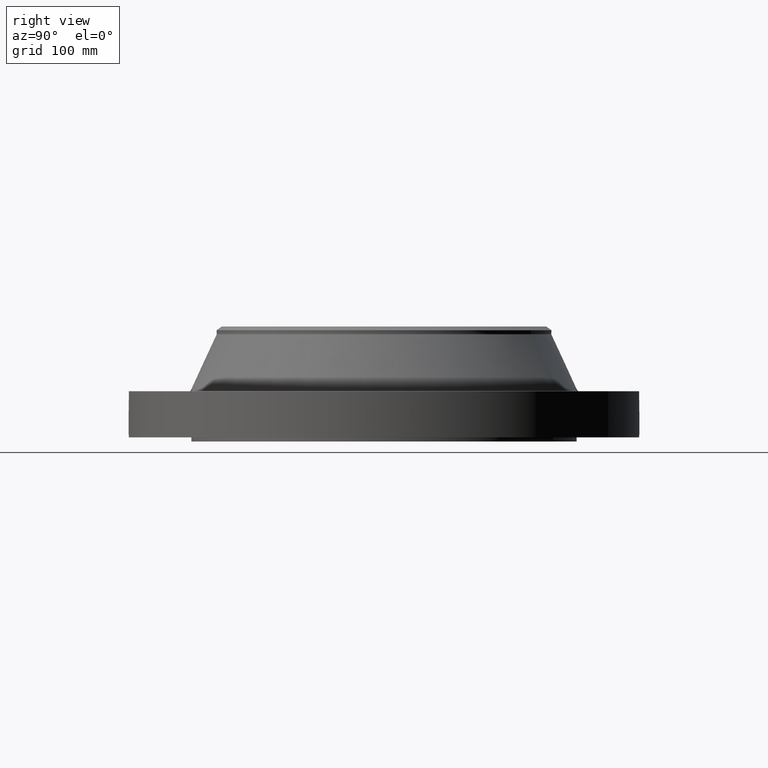
[diagram: clean part render]
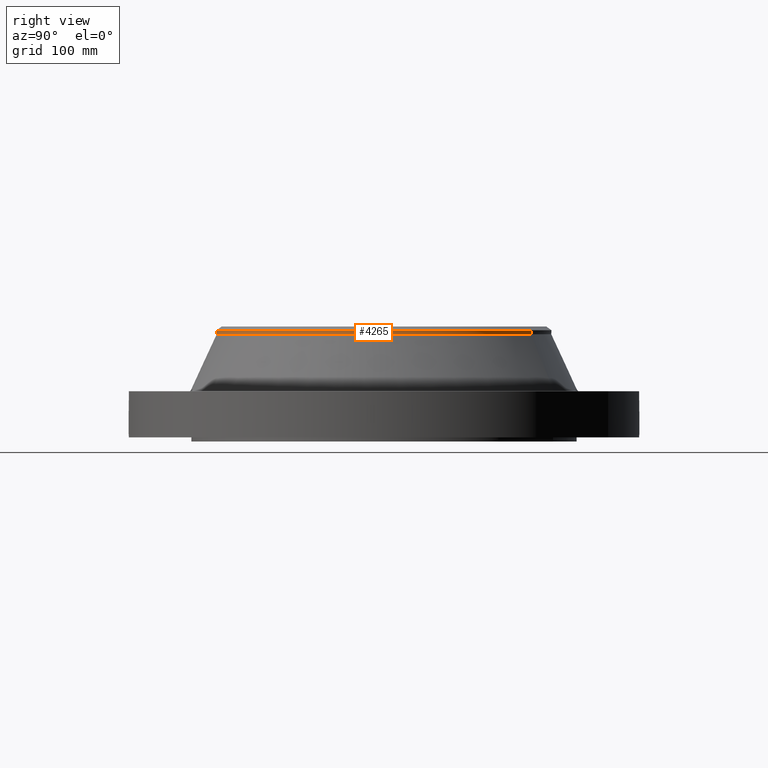
[diagram: same view with one face highlighted and labeled with its STEP entity id]
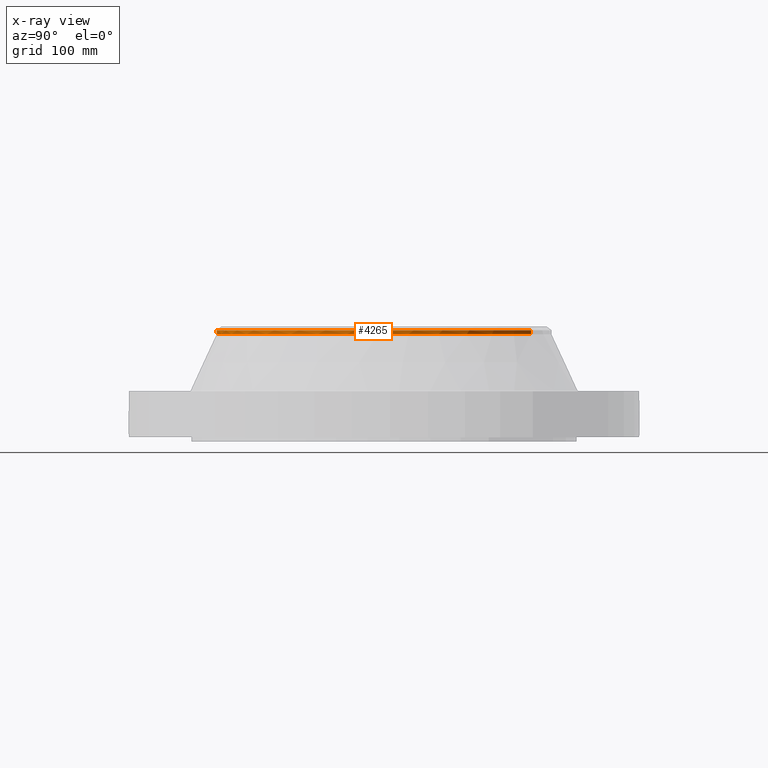
[diagram: x-ray of the same camera — body ghosted, the highlighted face saturated]
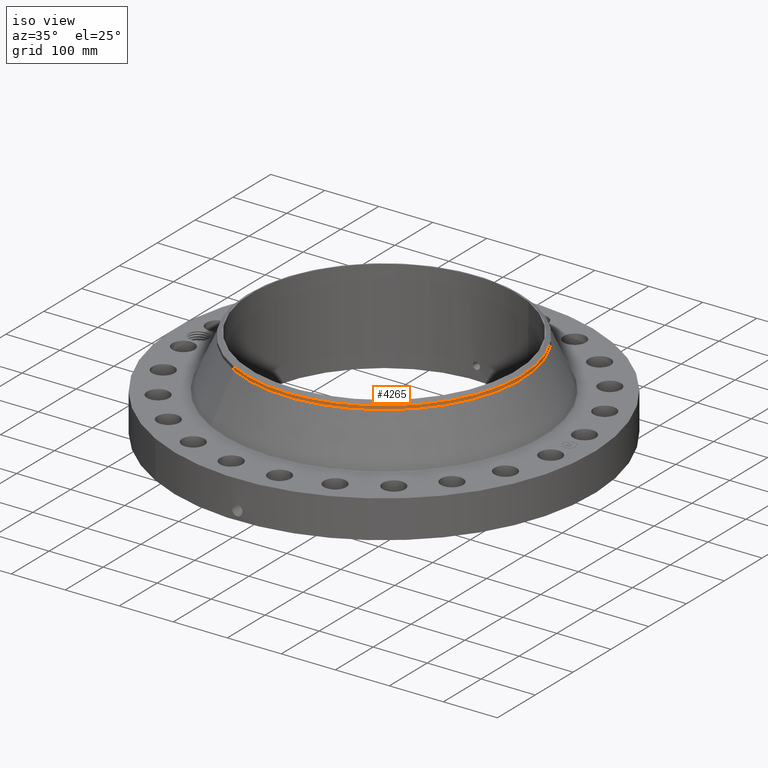
[diagram: same view with one face highlighted and labeled with its STEP entity id]
A machine part, right view. The second image highlights one B-rep face of the part: STEP entity #4265.
The next image is the same camera in x-ray: the body ghosted, the highlighted face saturated — about 0% of this face is hidden behind the body in this view.
A second angle (iso view) of the same face is appended — the face is thin or edge-on in the first view.
In plain terms, the highlighted cylindrical surface (partial cylindrical patch) has radius 254 mm, axis along (0, 0, -1).
Its self-contained STEP definition (entity closure, byte-faithful):
#3430=AXIS2_PLACEMENT_3D('Circle Axis2P3D',#3428,#3429,$) ;
#4230=AXIS2_PLACEMENT_3D('Cylinder Axis2P3D',#4227,#4228,#4229) ;
#4248=AXIS2_PLACEMENT_3D('Circle Axis2P3D',#4246,#4247,$) ;
#4255=AXIS2_PLACEMENT_3D('Circle Axis2P3D',#4253,#4254,$) ;
#3425=CARTESIAN_POINT('Vertex',(4.79425538606,8.77582561894,6.40645135497)) ;
#3428=CARTESIAN_POINT('Axis2P3D Location',(0.,0.,6.40645135497)) ;
#3432=CARTESIAN_POINT('Vertex',(-4.79425538606,-8.77582561894,6.40645135497)) ;
#4227=CARTESIAN_POINT('Axis2P3D Location',(0.,0.,3.43500000001)) ;
#4232=CARTESIAN_POINT('Line Origine',(-4.79425538606,-8.77582561894,6.52456159119)) ;
#4236=CARTESIAN_POINT('Vertex',(-4.79425538606,-8.77582561894,6.64267182741)) ;
#4239=CARTESIAN_POINT('Line Origine',(4.79425538606,8.77582561894,6.52456159119)) ;
#4243=CARTESIAN_POINT('Vertex',(4.79425538606,8.77582561894,6.64267182741)) ;
#4246=CARTESIAN_POINT('Axis2P3D Location',(0.,0.,6.64267182741)) ;
#4250=CARTESIAN_POINT('Vertex',(4.79425538606,-8.77582561894,6.64267182741)) ;
#4253=CARTESIAN_POINT('Axis2P3D Location',(0.,0.,6.64267182741)) ;
#3429=DIRECTION('Axis2P3D Direction',(0.,0.,-0.0393700787402)) ;
#4228=DIRECTION('Axis2P3D Direction',(0.,0.,-0.0393700787402)) ;
#4229=DIRECTION('Axis2P3D XDirection',(-0.0188750212049,-0.0345504945626,0.)) ;
#4233=DIRECTION('Vector Direction',(0.,0.,-0.0393700787402)) ;
#4240=DIRECTION('Vector Direction',(0.,0.,-0.0393700787402)) ;
#4247=DIRECTION('Axis2P3D Direction',(0.,0.,-0.0393700787402)) ;
#4254=DIRECTION('Axis2P3D Direction',(0.,0.,-0.0393700787402)) ;
#4234=VECTOR('Line Direction',#4233,0.0393700787402) ;
#4241=VECTOR('Line Direction',#4240,0.0393700787402) ;
#4259=ORIENTED_EDGE('',*,*,#4238,.F.) ;
#4260=ORIENTED_EDGE('',*,*,#3434,.F.) ;
#4261=ORIENTED_EDGE('',*,*,#4245,.T.) ;
#4262=ORIENTED_EDGE('',*,*,#4252,.F.) ;
#4263=ORIENTED_EDGE('',*,*,#4257,.T.) ;
#4265=ADVANCED_FACE('PartBody',(#4264),#4231,.T.) ;
#3431=CIRCLE('generated circle',#3430,10.) ;
#4249=CIRCLE('generated circle',#4248,10.) ;
#4256=CIRCLE('generated circle',#4255,10.) ;
#4231=CYLINDRICAL_SURFACE('generated cylinder',#4230,10.) ;
#3434=EDGE_CURVE('',#3426,#3433,#3431,.T.) ;
#4238=EDGE_CURVE('',#3433,#4237,#4235,.F.) ;
#4245=EDGE_CURVE('',#3426,#4244,#4242,.F.) ;
#4252=EDGE_CURVE('',#4251,#4244,#4249,.F.) ;
#4257=EDGE_CURVE('',#4251,#4237,#4256,.T.) ;
#4258=EDGE_LOOP('',(#4259,#4260,#4261,#4262,#4263)) ;
#4264=FACE_OUTER_BOUND('',#4258,.T.) ;
#4235=LINE('Line',#4232,#4234) ;
#4242=LINE('Line',#4239,#4241) ;
#3426=VERTEX_POINT('',#3425) ;
#3433=VERTEX_POINT('',#3432) ;
#4237=VERTEX_POINT('',#4236) ;
#4244=VERTEX_POINT('',#4243) ;
#4251=VERTEX_POINT('',#4250) ;